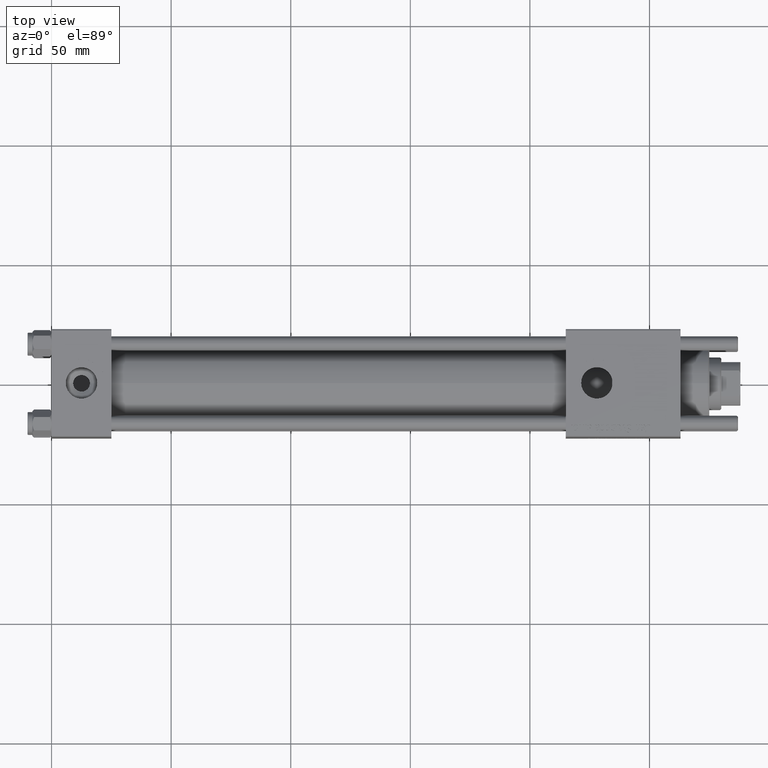
[diagram: clean part render]
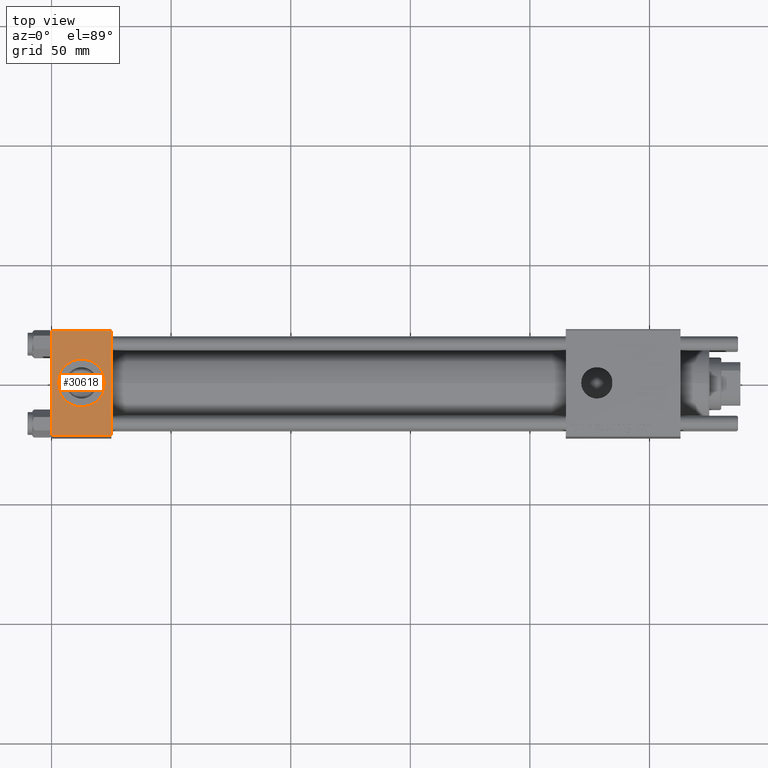
[diagram: same view with one face highlighted and labeled with its STEP entity id]
A machine part, top view. The second image highlights one B-rep face of the part: STEP entity #30618.
In plain terms, the highlighted planar face has unit normal (0, 0, -1).
Its self-contained STEP definition (entity closure, byte-faithful):
#750 = DIRECTION ( 'NONE',  ( 0.000000000000000000, 1.000000000000000000, 7.709882115452476934E-17 ) ) ;
#1229 = ORIENTED_EDGE ( 'NONE', *, *, #32692, .F. ) ;
#1234 = EDGE_CURVE ( 'NONE', #40672, #33628, #2795, .T. ) ;
#2468 = EDGE_CURVE ( 'NONE', #56524, #14184, #25697, .T. ) ;
#2700 = CARTESIAN_POINT ( 'NONE',  ( 0.000000000000000000, 22.50000000000000000, 22.50000000000000355 ) ) ;
#2795 = LINE ( 'NONE', #26327, #11547 ) ;
#2935 = LINE ( 'NONE', #3236, #44130 ) ;
#3236 = CARTESIAN_POINT ( 'NONE',  ( 0.000000000000000000, 21.99999999999999289, 22.50000000000000355 ) ) ;
#5102 = CARTESIAN_POINT ( 'NONE',  ( 0.000000000000000000, -21.99999999999997868, 22.50000000000000000 ) ) ;
#7223 = CARTESIAN_POINT ( 'NONE',  ( 12.50000000000000000, -1.734723475976807094E-15, 22.50000000000000000 ) ) ;
#9299 = DIRECTION ( 'NONE',  ( 1.000000000000000000, 0.000000000000000000, 0.000000000000000000 ) ) ;
#9510 = CARTESIAN_POINT ( 'NONE',  ( 25.00000000000000000, 21.99999999999999289, 22.50000000000000355 ) ) ;
#10756 = EDGE_LOOP ( 'NONE', ( #33664, #1229 ) ) ;
#11547 = VECTOR ( 'NONE', #35559, 1000.000000000000000 ) ;
#12076 = VERTEX_POINT ( 'NONE', #36085 ) ;
#12245 = ORIENTED_EDGE ( 'NONE', *, *, #20116, .T. ) ;
#14158 = CARTESIAN_POINT ( 'NONE',  ( 25.00000000000000000, 22.50000000000000000, 22.50000000000000355 ) ) ;
#14184 = VERTEX_POINT ( 'NONE', #55688 ) ;
#18630 = FACE_OUTER_BOUND ( 'NONE', #46068, .T. ) ;
#20116 = EDGE_CURVE ( 'NONE', #12076, #40672, #34254, .T. ) ;
#21397 = CARTESIAN_POINT ( 'NONE',  ( 25.00000000000000000, 22.50000000000000000, 22.50000000000000355 ) ) ;
#21922 = AXIS2_PLACEMENT_3D ( 'NONE', #7223, #39069, #25383 ) ;
#24128 = ORIENTED_EDGE ( 'NONE', *, *, #55241, .T. ) ;
#25383 = DIRECTION ( 'NONE',  ( 1.000000000000000000, 0.000000000000000000, 0.000000000000000000 ) ) ;
#25697 = CIRCLE ( 'NONE', #21922, 9.999999999999998224 ) ;
#26160 = LINE ( 'NONE', #21397, #44599 ) ;
#26327 = CARTESIAN_POINT ( 'NONE',  ( 25.00000000000000000, -21.99999999999999289, 22.50000000000000000 ) ) ;
#26815 = ORIENTED_EDGE ( 'NONE', *, *, #32011, .F. ) ;
#29421 = CIRCLE ( 'NONE', #50336, 9.999999999999998224 ) ;
#30618 = ADVANCED_FACE ( 'NONE', ( #49873, #18630 ), #50449, .F. ) ;
#30878 = VECTOR ( 'NONE', #51516, 1000.000000000000000 ) ;
#31722 = CARTESIAN_POINT ( 'NONE',  ( 22.50000000000000000, -1.734723475976807094E-15, 22.50000000000000000 ) ) ;
#31760 = VERTEX_POINT ( 'NONE', #9510 ) ;
#32011 = EDGE_CURVE ( 'NONE', #31760, #33628, #26160, .T. ) ;
#32692 = EDGE_CURVE ( 'NONE', #14184, #56524, #29421, .T. ) ;
#33628 = VERTEX_POINT ( 'NONE', #53615 ) ;
#33664 = ORIENTED_EDGE ( 'NONE', *, *, #2468, .F. ) ;
#34254 = LINE ( 'NONE', #2700, #30878 ) ;
#35559 = DIRECTION ( 'NONE',  ( 1.000000000000000000, 0.000000000000000000, 0.000000000000000000 ) ) ;
#36085 = CARTESIAN_POINT ( 'NONE',  ( 0.000000000000000000, 21.99999999999999289, 22.50000000000000355 ) ) ;
#39069 = DIRECTION ( 'NONE',  ( 0.000000000000000000, 0.000000000000000000, 1.000000000000000000 ) ) ;
#39262 = DIRECTION ( 'NONE',  ( -1.000000000000000000, 0.000000000000000000, 0.000000000000000000 ) ) ;
#39550 = DIRECTION ( 'NONE',  ( 0.000000000000000000, -1.000000000000000000, -7.709882115452476934E-17 ) ) ;
#40478 = ORIENTED_EDGE ( 'NONE', *, *, #1234, .T. ) ;
#40672 = VERTEX_POINT ( 'NONE', #5102 ) ;
#42632 = AXIS2_PLACEMENT_3D ( 'NONE', #14158, #45993, #750 ) ;
#44130 = VECTOR ( 'NONE', #39262, 1000.000000000000000 ) ;
#44599 = VECTOR ( 'NONE', #39550, 1000.000000000000000 ) ;
#45993 = DIRECTION ( 'NONE',  ( 0.000000000000000000, 7.709882115452476934E-17, -1.000000000000000000 ) ) ;
#46068 = EDGE_LOOP ( 'NONE', ( #12245, #40478, #26815, #24128 ) ) ;
#46195 = CARTESIAN_POINT ( 'NONE',  ( 12.50000000000000000, -1.734723475976807094E-15, 22.50000000000000000 ) ) ;
#49873 = FACE_BOUND ( 'NONE', #10756, .T. ) ;
#50072 = DIRECTION ( 'NONE',  ( 0.000000000000000000, 0.000000000000000000, 1.000000000000000000 ) ) ;
#50336 = AXIS2_PLACEMENT_3D ( 'NONE', #46195, #50072, #9299 ) ;
#50449 = PLANE ( 'NONE',  #42632 ) ;
#51516 = DIRECTION ( 'NONE',  ( 0.000000000000000000, -1.000000000000000000, -7.709882115452476934E-17 ) ) ;
#53615 = CARTESIAN_POINT ( 'NONE',  ( 25.00000000000000000, -21.99999999999997868, 22.50000000000000000 ) ) ;
#55241 = EDGE_CURVE ( 'NONE', #31760, #12076, #2935, .T. ) ;
#55688 = CARTESIAN_POINT ( 'NONE',  ( 2.500000000000003997, -5.100766768294543310E-16, 22.50000000000000000 ) ) ;
#56524 = VERTEX_POINT ( 'NONE', #31722 ) ;